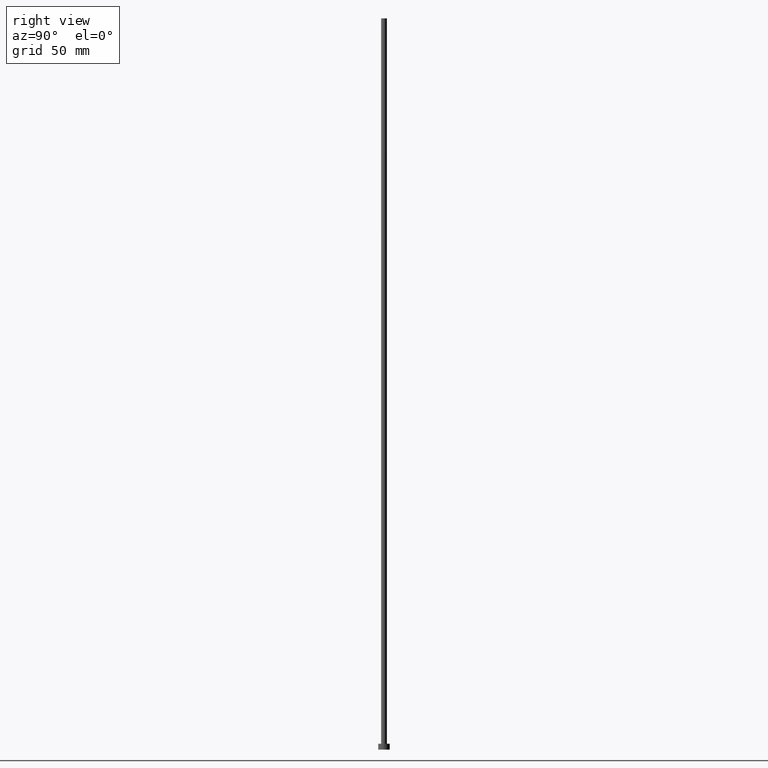
[diagram: clean part render]
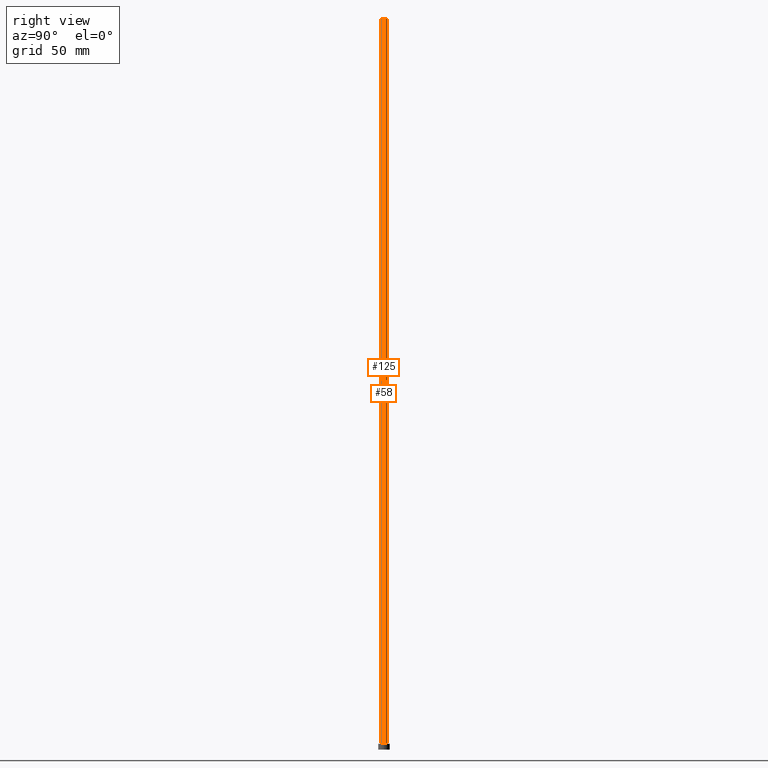
[diagram: same view with one multi-face feature highlighted, each face labeled with its STEP entity id]
A machine part, right view. The highlighted faces form ONE feature: a constant-radius fillet chain: 2 tangent blend faces with common blend radius 2 mm. The faces share edges in the B-rep.
Their STEP definitions:
[1] entity #125 (Cylinder):
#6 = CIRCLE ( 'NONE', #202, 2.000000000000000000 ) ;
#8 = ORIENTED_EDGE ( 'NONE', *, *, #180, .T. ) ;
#12 = DIRECTION ( 'NONE',  ( -0.000000000000000000, -0.000000000000000000, -1.000000000000000000 ) ) ;
#13 = CARTESIAN_POINT ( 'NONE',  ( 0.000000000000000000, 0.000000000000000000, 4.000000000000000000 ) ) ;
#15 = CARTESIAN_POINT ( 'NONE',  ( 2.000000000000000000, 2.449293598294706414E-16, 4.000000000000000000 ) ) ;
#21 = CIRCLE ( 'NONE', #82, 2.000000000000000000 ) ;
#27 = VECTOR ( 'NONE', #12, 1000.000000000000000 ) ;
#34 = DIRECTION ( 'NONE',  ( 0.000000000000000000, 0.000000000000000000, 1.000000000000000000 ) ) ;
#35 = CARTESIAN_POINT ( 'NONE',  ( 2.000000000000000000, 2.449293598294706414E-16, 500.0000000000000000 ) ) ;
#40 = ORIENTED_EDGE ( 'NONE', *, *, #144, .F. ) ;
#42 = VERTEX_POINT ( 'NONE', #134 ) ;
#56 = CARTESIAN_POINT ( 'NONE',  ( 2.000000000000000000, 2.449293598294706414E-16, 500.0000000000000000 ) ) ;
#62 = EDGE_LOOP ( 'NONE', ( #40, #63, #8, #216 ) ) ;
#63 = ORIENTED_EDGE ( 'NONE', *, *, #133, .F. ) ;
#71 = DIRECTION ( 'NONE',  ( 1.000000000000000000, 0.000000000000000000, 0.000000000000000000 ) ) ;
#74 = CARTESIAN_POINT ( 'NONE',  ( 0.000000000000000000, 0.000000000000000000, 500.0000000000000000 ) ) ;
#82 = AXIS2_PLACEMENT_3D ( 'NONE', #13, #34, #71 ) ;
#88 = EDGE_CURVE ( 'NONE', #108, #127, #21, .T. ) ;
#95 = VECTOR ( 'NONE', #195, 1000.000000000000000 ) ;
#107 = LINE ( 'NONE', #35, #95 ) ;
#108 = VERTEX_POINT ( 'NONE', #114 ) ;
#113 = CARTESIAN_POINT ( 'NONE',  ( -2.000000000000000000, 0.000000000000000000, 500.0000000000000000 ) ) ;
#114 = CARTESIAN_POINT ( 'NONE',  ( -2.000000000000000000, 0.000000000000000000, 4.000000000000000000 ) ) ;
#115 = DIRECTION ( 'NONE',  ( -0.000000000000000000, -0.000000000000000000, -1.000000000000000000 ) ) ;
#125 = ADVANCED_FACE ( 'NONE', ( #171 ), #155, .T. ) ;
#127 = VERTEX_POINT ( 'NONE', #15 ) ;
#133 = EDGE_CURVE ( 'NONE', #42, #235, #6, .T. ) ;
#134 = CARTESIAN_POINT ( 'NONE',  ( -2.000000000000000000, 0.000000000000000000, 500.0000000000000000 ) ) ;
#144 = EDGE_CURVE ( 'NONE', #235, #127, #107, .T. ) ;
#148 = DIRECTION ( 'NONE',  ( 0.000000000000000000, 0.000000000000000000, 1.000000000000000000 ) ) ;
#155 = CYLINDRICAL_SURFACE ( 'NONE', #214, 2.000000000000000000 ) ;
#171 = FACE_OUTER_BOUND ( 'NONE', #62, .T. ) ;
#177 = CARTESIAN_POINT ( 'NONE',  ( 0.000000000000000000, 0.000000000000000000, 500.0000000000000000 ) ) ;
#180 = EDGE_CURVE ( 'NONE', #42, #108, #190, .T. ) ;
#190 = LINE ( 'NONE', #113, #27 ) ;
#191 = DIRECTION ( 'NONE',  ( -1.000000000000000000, 0.000000000000000000, 0.000000000000000000 ) ) ;
#195 = DIRECTION ( 'NONE',  ( -0.000000000000000000, -0.000000000000000000, -1.000000000000000000 ) ) ;
#202 = AXIS2_PLACEMENT_3D ( 'NONE', #177, #148, #218 ) ;
#214 = AXIS2_PLACEMENT_3D ( 'NONE', #74, #115, #191 ) ;
#216 = ORIENTED_EDGE ( 'NONE', *, *, #88, .T. ) ;
#218 = DIRECTION ( 'NONE',  ( 1.000000000000000000, 0.000000000000000000, 0.000000000000000000 ) ) ;
#235 = VERTEX_POINT ( 'NONE', #56 ) ;
[2] entity #58 (Cylinder):
#12 = DIRECTION ( 'NONE',  ( -0.000000000000000000, -0.000000000000000000, -1.000000000000000000 ) ) ;
#15 = CARTESIAN_POINT ( 'NONE',  ( 2.000000000000000000, 2.449293598294706414E-16, 4.000000000000000000 ) ) ;
#17 = CARTESIAN_POINT ( 'NONE',  ( 0.000000000000000000, 0.000000000000000000, 4.000000000000000000 ) ) ;
#19 = ORIENTED_EDGE ( 'NONE', *, *, #238, .T. ) ;
#27 = VECTOR ( 'NONE', #12, 1000.000000000000000 ) ;
#35 = CARTESIAN_POINT ( 'NONE',  ( 2.000000000000000000, 2.449293598294706414E-16, 500.0000000000000000 ) ) ;
#42 = VERTEX_POINT ( 'NONE', #134 ) ;
#56 = CARTESIAN_POINT ( 'NONE',  ( 2.000000000000000000, 2.449293598294706414E-16, 500.0000000000000000 ) ) ;
#58 = ADVANCED_FACE ( 'NONE', ( #166 ), #232, .T. ) ;
#84 = AXIS2_PLACEMENT_3D ( 'NONE', #179, #140, #252 ) ;
#87 = CARTESIAN_POINT ( 'NONE',  ( 0.000000000000000000, 0.000000000000000000, 500.0000000000000000 ) ) ;
#89 = DIRECTION ( 'NONE',  ( 0.000000000000000000, 0.000000000000000000, 1.000000000000000000 ) ) ;
#95 = VECTOR ( 'NONE', #195, 1000.000000000000000 ) ;
#107 = LINE ( 'NONE', #35, #95 ) ;
#108 = VERTEX_POINT ( 'NONE', #114 ) ;
#113 = CARTESIAN_POINT ( 'NONE',  ( -2.000000000000000000, 0.000000000000000000, 500.0000000000000000 ) ) ;
#114 = CARTESIAN_POINT ( 'NONE',  ( -2.000000000000000000, 0.000000000000000000, 4.000000000000000000 ) ) ;
#127 = VERTEX_POINT ( 'NONE', #15 ) ;
#134 = CARTESIAN_POINT ( 'NONE',  ( -2.000000000000000000, 0.000000000000000000, 500.0000000000000000 ) ) ;
#140 = DIRECTION ( 'NONE',  ( -0.000000000000000000, -0.000000000000000000, -1.000000000000000000 ) ) ;
#144 = EDGE_CURVE ( 'NONE', #235, #127, #107, .T. ) ;
#157 = DIRECTION ( 'NONE',  ( 0.000000000000000000, 0.000000000000000000, 1.000000000000000000 ) ) ;
#158 = ORIENTED_EDGE ( 'NONE', *, *, #172, .F. ) ;
#161 = EDGE_LOOP ( 'NONE', ( #158, #229, #19, #183 ) ) ;
#165 = AXIS2_PLACEMENT_3D ( 'NONE', #87, #89, #210 ) ;
#166 = FACE_OUTER_BOUND ( 'NONE', #161, .T. ) ;
#172 = EDGE_CURVE ( 'NONE', #235, #42, #247, .T. ) ;
#179 = CARTESIAN_POINT ( 'NONE',  ( 0.000000000000000000, 0.000000000000000000, 500.0000000000000000 ) ) ;
#180 = EDGE_CURVE ( 'NONE', #42, #108, #190, .T. ) ;
#183 = ORIENTED_EDGE ( 'NONE', *, *, #180, .F. ) ;
#190 = LINE ( 'NONE', #113, #27 ) ;
#192 = CIRCLE ( 'NONE', #248, 2.000000000000000000 ) ;
#195 = DIRECTION ( 'NONE',  ( -0.000000000000000000, -0.000000000000000000, -1.000000000000000000 ) ) ;
#210 = DIRECTION ( 'NONE',  ( 1.000000000000000000, 0.000000000000000000, 0.000000000000000000 ) ) ;
#215 = DIRECTION ( 'NONE',  ( 1.000000000000000000, 0.000000000000000000, 0.000000000000000000 ) ) ;
#229 = ORIENTED_EDGE ( 'NONE', *, *, #144, .T. ) ;
#232 = CYLINDRICAL_SURFACE ( 'NONE', #84, 2.000000000000000000 ) ;
#235 = VERTEX_POINT ( 'NONE', #56 ) ;
#238 = EDGE_CURVE ( 'NONE', #127, #108, #192, .T. ) ;
#247 = CIRCLE ( 'NONE', #165, 2.000000000000000000 ) ;
#248 = AXIS2_PLACEMENT_3D ( 'NONE', #17, #157, #215 ) ;
#252 = DIRECTION ( 'NONE',  ( -1.000000000000000000, 0.000000000000000000, 0.000000000000000000 ) ) ;